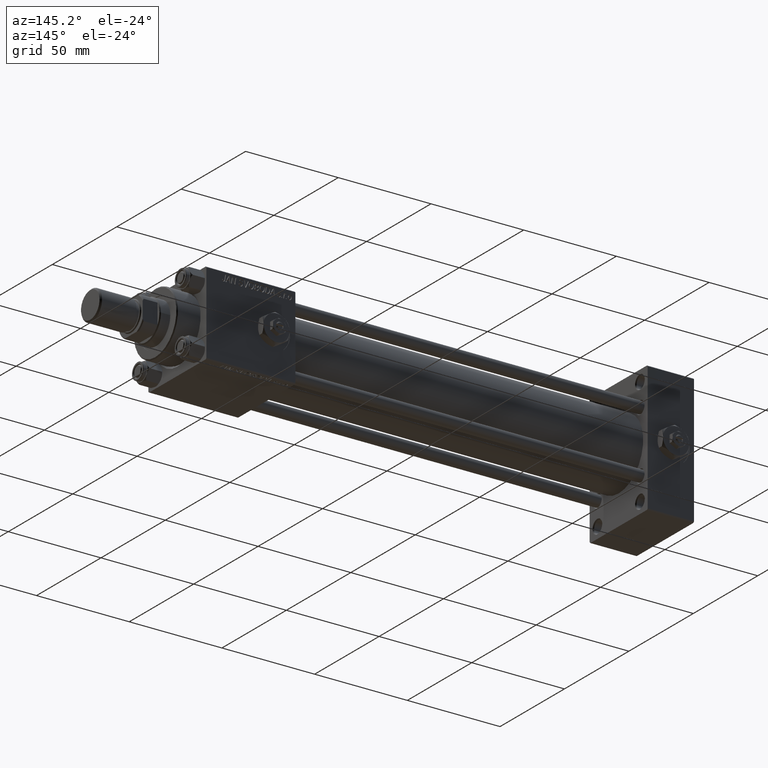
[diagram: clean part render]
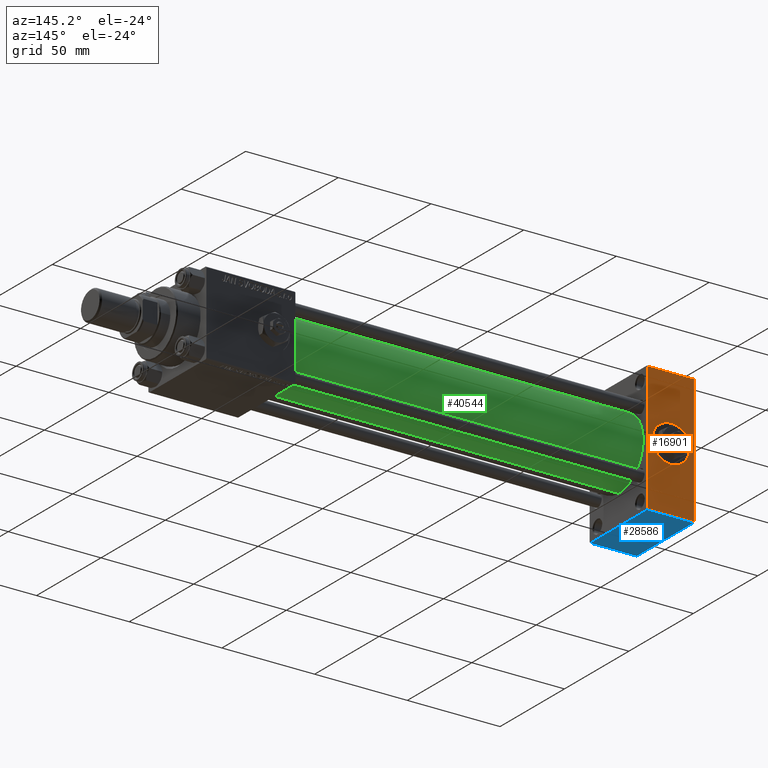
[diagram: same view with three faces highlighted in distinct colors, each labeled with its STEP entity id]
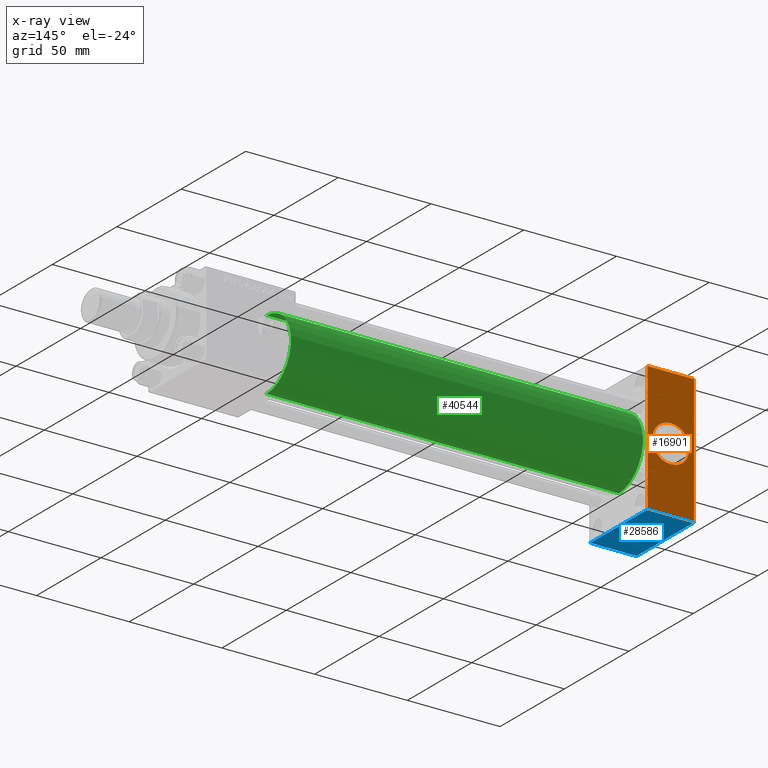
[diagram: x-ray of the same camera — body ghosted, the three highlighted faces saturated]
A machine part, auxiliary view with three faces highlighted in distinct colors.
The next image is the same camera in x-ray (body ghosted, the three faces saturated) — at least one of them is partly hidden behind the body in this view.
Their STEP definitions:

[orange] entity #16901 — the highlighted planar face has unit normal (0, 1, 0).
#378 = VERTEX_POINT ( 'NONE', #51078 ) ;
#2437 = EDGE_CURVE ( 'NONE', #378, #4293, #51621, .T. ) ;
#4267 = FACE_BOUND ( 'NONE', #9749, .T. ) ;
#4293 = VERTEX_POINT ( 'NONE', #41762 ) ;
#5075 = EDGE_LOOP ( 'NONE', ( #46463, #10758, #13793, #5126 ) ) ;
#5126 = ORIENTED_EDGE ( 'NONE', *, *, #47756, .T. ) ;
#8235 = DIRECTION ( 'NONE',  ( 0.000000000000000000, -0.000000000000000000, 1.000000000000000000 ) ) ;
#9749 = EDGE_LOOP ( 'NONE', ( #51679, #12500 ) ) ;
#10061 = VERTEX_POINT ( 'NONE', #22151 ) ;
#10758 = ORIENTED_EDGE ( 'NONE', *, *, #36799, .T. ) ;
#12500 = ORIENTED_EDGE ( 'NONE', *, *, #50570, .F. ) ;
#13793 = ORIENTED_EDGE ( 'NONE', *, *, #51353, .F. ) ;
#15006 = LINE ( 'NONE', #26447, #50454 ) ;
#15068 = VERTEX_POINT ( 'NONE', #19122 ) ;
#16605 = VERTEX_POINT ( 'NONE', #36677 ) ;
#16901 = ADVANCED_FACE ( 'NONE', ( #4267, #49081 ), #48293, .T. ) ;
#16911 = AXIS2_PLACEMENT_3D ( 'NONE', #36346, #36611, #8235 ) ;
#19122 = CARTESIAN_POINT ( 'NONE',  ( 0.000000000000000000, 22.50000000000000355, 34.49999999999999289 ) ) ;
#19288 = AXIS2_PLACEMENT_3D ( 'NONE', #37228, #40944, #28490 ) ;
#19456 = VECTOR ( 'NONE', #49786, 1000.000000000000000 ) ;
#19731 = EDGE_CURVE ( 'NONE', #42853, #10061, #33602, .T. ) ;
#22151 = CARTESIAN_POINT ( 'NONE',  ( 25.00000000000000000, 22.50000000000000355, -34.49999999999999289 ) ) ;
#22567 = DIRECTION ( 'NONE',  ( 0.000000000000000000, 0.000000000000000000, -1.000000000000000000 ) ) ;
#24711 = CARTESIAN_POINT ( 'NONE',  ( 25.00000000000000000, 22.50000000000000355, 34.49999999999999289 ) ) ;
#25124 = CARTESIAN_POINT ( 'NONE',  ( 25.00000000000000000, 22.50000000000000355, 35.00000000000000711 ) ) ;
#26447 = CARTESIAN_POINT ( 'NONE',  ( 25.00000000000000000, 22.50000000000000355, -34.49999999999999289 ) ) ;
#28490 = DIRECTION ( 'NONE',  ( 0.000000000000000000, 0.000000000000000000, 1.000000000000000000 ) ) ;
#31760 = DIRECTION ( 'NONE',  ( 0.000000000000000000, 1.000000000000000000, 0.000000000000000000 ) ) ;
#32007 = VECTOR ( 'NONE', #22567, 1000.000000000000000 ) ;
#32737 = VECTOR ( 'NONE', #35610, 1000.000000000000000 ) ;
#33602 = LINE ( 'NONE', #25124, #19456 ) ;
#33988 = CARTESIAN_POINT ( 'NONE',  ( 0.000000000000000000, 22.50000000000000355, 35.00000000000000711 ) ) ;
#35610 = DIRECTION ( 'NONE',  ( 1.000000000000000000, 0.000000000000000000, 0.000000000000000000 ) ) ;
#35731 = CARTESIAN_POINT ( 'NONE',  ( 12.50000000000000000, 22.50000000000000355, 0.000000000000000000 ) ) ;
#36346 = CARTESIAN_POINT ( 'NONE',  ( 25.00000000000000000, 22.50000000000000355, 35.00000000000000711 ) ) ;
#36611 = DIRECTION ( 'NONE',  ( -0.000000000000000000, 1.000000000000000000, 0.000000000000000000 ) ) ;
#36677 = CARTESIAN_POINT ( 'NONE',  ( 0.000000000000000000, 22.50000000000000355, -34.49999999999999289 ) ) ;
#36799 = EDGE_CURVE ( 'NONE', #10061, #16605, #15006, .T. ) ;
#37228 = CARTESIAN_POINT ( 'NONE',  ( 12.50000000000000000, 22.50000000000000355, 0.000000000000000000 ) ) ;
#40944 = DIRECTION ( 'NONE',  ( 0.000000000000000000, 1.000000000000000000, 0.000000000000000000 ) ) ;
#41762 = CARTESIAN_POINT ( 'NONE',  ( 12.50000000000000178, 22.50000000000000355, -9.999999999999996447 ) ) ;
#42610 = DIRECTION ( 'NONE',  ( -1.000000000000000000, 0.000000000000000000, 0.000000000000000000 ) ) ;
#42853 = VERTEX_POINT ( 'NONE', #47784 ) ;
#43946 = DIRECTION ( 'NONE',  ( 0.000000000000000000, 0.000000000000000000, 1.000000000000000000 ) ) ;
#44694 = CIRCLE ( 'NONE', #19288, 9.999999999999996447 ) ;
#44841 = AXIS2_PLACEMENT_3D ( 'NONE', #35731, #31760, #43946 ) ;
#44875 = LINE ( 'NONE', #24711, #32737 ) ;
#45403 = LINE ( 'NONE', #33988, #32007 ) ;
#46463 = ORIENTED_EDGE ( 'NONE', *, *, #19731, .T. ) ;
#47756 = EDGE_CURVE ( 'NONE', #15068, #42853, #44875, .T. ) ;
#47784 = CARTESIAN_POINT ( 'NONE',  ( 25.00000000000000000, 22.50000000000000355, 34.49999999999999289 ) ) ;
#48293 = PLANE ( 'NONE',  #16911 ) ;
#49081 = FACE_OUTER_BOUND ( 'NONE', #5075, .T. ) ;
#49786 = DIRECTION ( 'NONE',  ( 0.000000000000000000, 0.000000000000000000, -1.000000000000000000 ) ) ;
#50454 = VECTOR ( 'NONE', #42610, 1000.000000000000000 ) ;
#50570 = EDGE_CURVE ( 'NONE', #4293, #378, #44694, .T. ) ;
#51078 = CARTESIAN_POINT ( 'NONE',  ( 12.50000000000000000, 22.50000000000000355, 9.999999999999996447 ) ) ;
#51353 = EDGE_CURVE ( 'NONE', #15068, #16605, #45403, .T. ) ;
#51621 = CIRCLE ( 'NONE', #44841, 9.999999999999996447 ) ;
#51679 = ORIENTED_EDGE ( 'NONE', *, *, #2437, .F. ) ;

[blue] entity #28586 — the highlighted planar face has unit normal (0, 0, -1).
#2828 = AXIS2_PLACEMENT_3D ( 'NONE', #48480, #3150, #47443 ) ;
#2902 = VECTOR ( 'NONE', #48978, 1000.000000000000000 ) ;
#3150 = DIRECTION ( 'NONE',  ( 0.000000000000000000, 1.541976423090495387E-16, -1.000000000000000000 ) ) ;
#7421 = VECTOR ( 'NONE', #11662, 1000.000000000000000 ) ;
#8204 = VERTEX_POINT ( 'NONE', #39591 ) ;
#11150 = LINE ( 'NONE', #39009, #7421 ) ;
#11662 = DIRECTION ( 'NONE',  ( -1.000000000000000000, 0.000000000000000000, 0.000000000000000000 ) ) ;
#11789 = LINE ( 'NONE', #20286, #50195 ) ;
#12279 = ORIENTED_EDGE ( 'NONE', *, *, #39484, .T. ) ;
#13573 = VERTEX_POINT ( 'NONE', #32780 ) ;
#14065 = EDGE_LOOP ( 'NONE', ( #35723, #29426, #44273, #12279 ) ) ;
#20286 = CARTESIAN_POINT ( 'NONE',  ( 25.00000000000000000, 22.50000000000000355, -34.99999999999999289 ) ) ;
#22484 = LINE ( 'NONE', #30193, #46897 ) ;
#23305 = FACE_OUTER_BOUND ( 'NONE', #14065, .T. ) ;
#23744 = DIRECTION ( 'NONE',  ( 0.000000000000000000, -1.000000000000000000, -1.541976423090495387E-16 ) ) ;
#26913 = EDGE_CURVE ( 'NONE', #13573, #35706, #11789, .T. ) ;
#28586 = ADVANCED_FACE ( 'NONE', ( #23305 ), #48218, .T. ) ;
#29096 = LINE ( 'NONE', #36777, #2902 ) ;
#29426 = ORIENTED_EDGE ( 'NONE', *, *, #33998, .T. ) ;
#29643 = CARTESIAN_POINT ( 'NONE',  ( 25.00000000000000000, -21.99999999999998934, -35.00000000000000000 ) ) ;
#30193 = CARTESIAN_POINT ( 'NONE',  ( 0.000000000000000000, 22.50000000000000355, -34.99999999999999289 ) ) ;
#32780 = CARTESIAN_POINT ( 'NONE',  ( 25.00000000000000000, 21.99999999999999645, -34.99999999999999289 ) ) ;
#33146 = EDGE_CURVE ( 'NONE', #8204, #34404, #22484, .T. ) ;
#33998 = EDGE_CURVE ( 'NONE', #8204, #13573, #29096, .T. ) ;
#34404 = VERTEX_POINT ( 'NONE', #37441 ) ;
#35706 = VERTEX_POINT ( 'NONE', #29643 ) ;
#35723 = ORIENTED_EDGE ( 'NONE', *, *, #33146, .F. ) ;
#36777 = CARTESIAN_POINT ( 'NONE',  ( 25.00000000000000000, 21.99999999999999645, -34.99999999999999289 ) ) ;
#37441 = CARTESIAN_POINT ( 'NONE',  ( 0.000000000000000000, -21.99999999999998934, -35.00000000000000000 ) ) ;
#39009 = CARTESIAN_POINT ( 'NONE',  ( 0.000000000000000000, -22.00000000000000355, -35.00000000000000000 ) ) ;
#39484 = EDGE_CURVE ( 'NONE', #35706, #34404, #11150, .T. ) ;
#39591 = CARTESIAN_POINT ( 'NONE',  ( 0.000000000000000000, 21.99999999999999645, -34.99999999999999289 ) ) ;
#44273 = ORIENTED_EDGE ( 'NONE', *, *, #26913, .T. ) ;
#46357 = DIRECTION ( 'NONE',  ( 0.000000000000000000, -1.000000000000000000, -1.541976423090495387E-16 ) ) ;
#46897 = VECTOR ( 'NONE', #46357, 1000.000000000000000 ) ;
#47443 = DIRECTION ( 'NONE',  ( 0.000000000000000000, 1.000000000000000000, 1.541976423090495387E-16 ) ) ;
#48218 = PLANE ( 'NONE',  #2828 ) ;
#48480 = CARTESIAN_POINT ( 'NONE',  ( 25.00000000000000000, 22.50000000000000355, -34.99999999999999289 ) ) ;
#48978 = DIRECTION ( 'NONE',  ( 1.000000000000000000, 0.000000000000000000, 0.000000000000000000 ) ) ;
#50195 = VECTOR ( 'NONE', #23744, 1000.000000000000000 ) ;

[green] entity #40544 — the highlighted cylindrical surface (partial cylindrical patch) has radius 19 mm, axis along (-1, -0, -0).
#4161 = CARTESIAN_POINT ( 'NONE',  ( 215.0000000000000000, -2.752562955852396712E-16, -19.00000000000000000 ) ) ;
#4490 = CARTESIAN_POINT ( 'NONE',  ( 24.99999999999999289, -2.602085213965210642E-15, 19.00000000000000000 ) ) ;
#5936 = CARTESIAN_POINT ( 'NONE',  ( 215.0000000000000000, -2.752562955852396712E-16, -19.00000000000000000 ) ) ;
#7952 = CARTESIAN_POINT ( 'NONE',  ( 215.0000000000000000, -2.602085213965210642E-15, 19.00000000000000000 ) ) ;
#9691 = ORIENTED_EDGE ( 'NONE', *, *, #51488, .F. ) ;
#14153 = DIRECTION ( 'NONE',  ( 0.000000000000000000, 0.000000000000000000, 1.000000000000000000 ) ) ;
#14520 = ORIENTED_EDGE ( 'NONE', *, *, #23989, .F. ) ;
#14652 = DIRECTION ( 'NONE',  ( -1.000000000000000000, -0.000000000000000000, -0.000000000000000000 ) ) ;
#18790 = DIRECTION ( 'NONE',  ( 0.000000000000000000, 0.000000000000000000, -1.000000000000000000 ) ) ;
#23401 = DIRECTION ( 'NONE',  ( 0.000000000000000000, 0.000000000000000000, 1.000000000000000000 ) ) ;
#23989 = EDGE_CURVE ( 'NONE', #30766, #48782, #45881, .T. ) ;
#26945 = VECTOR ( 'NONE', #35034, 1000.000000000000000 ) ;
#27167 = EDGE_CURVE ( 'NONE', #43984, #37728, #31607, .T. ) ;
#28551 = ORIENTED_EDGE ( 'NONE', *, *, #27167, .T. ) ;
#29496 = DIRECTION ( 'NONE',  ( 1.000000000000000000, 0.000000000000000000, 0.000000000000000000 ) ) ;
#30766 = VERTEX_POINT ( 'NONE', #5936 ) ;
#30844 = CYLINDRICAL_SURFACE ( 'NONE', #44317, 19.00000000000000000 ) ;
#31607 = CIRCLE ( 'NONE', #39205, 19.00000000000000000 ) ;
#33378 = CARTESIAN_POINT ( 'NONE',  ( 24.99999999999999289, -2.752562955852396712E-16, -19.00000000000000000 ) ) ;
#35034 = DIRECTION ( 'NONE',  ( -1.000000000000000000, -0.000000000000000000, -0.000000000000000000 ) ) ;
#35811 = LINE ( 'NONE', #7952, #26945 ) ;
#37728 = VERTEX_POINT ( 'NONE', #4490 ) ;
#38788 = CARTESIAN_POINT ( 'NONE',  ( 215.0000000000000000, -2.602085213965210642E-15, 0.000000000000000000 ) ) ;
#39205 = AXIS2_PLACEMENT_3D ( 'NONE', #46781, #50503, #14153 ) ;
#40330 = VECTOR ( 'NONE', #49238, 1000.000000000000000 ) ;
#40475 = LINE ( 'NONE', #4161, #40330 ) ;
#40544 = ADVANCED_FACE ( 'NONE', ( #51532 ), #30844, .T. ) ;
#43984 = VERTEX_POINT ( 'NONE', #33378 ) ;
#44317 = AXIS2_PLACEMENT_3D ( 'NONE', #38788, #14652, #23401 ) ;
#45013 = AXIS2_PLACEMENT_3D ( 'NONE', #51158, #29496, #18790 ) ;
#45246 = ORIENTED_EDGE ( 'NONE', *, *, #46932, .T. ) ;
#45881 = CIRCLE ( 'NONE', #45013, 19.00000000000000000 ) ;
#46487 = EDGE_LOOP ( 'NONE', ( #14520, #45246, #28551, #9691 ) ) ;
#46781 = CARTESIAN_POINT ( 'NONE',  ( 24.99999999999999289, -2.602085213965210642E-15, 0.000000000000000000 ) ) ;
#46932 = EDGE_CURVE ( 'NONE', #30766, #43984, #40475, .T. ) ;
#47255 = CARTESIAN_POINT ( 'NONE',  ( 215.0000000000000000, -2.602085213965210642E-15, 19.00000000000000000 ) ) ;
#48782 = VERTEX_POINT ( 'NONE', #47255 ) ;
#49238 = DIRECTION ( 'NONE',  ( -1.000000000000000000, -0.000000000000000000, -0.000000000000000000 ) ) ;
#50503 = DIRECTION ( 'NONE',  ( 1.000000000000000000, -0.000000000000000000, 0.000000000000000000 ) ) ;
#51158 = CARTESIAN_POINT ( 'NONE',  ( 215.0000000000000000, -2.602085213965210642E-15, 0.000000000000000000 ) ) ;
#51488 = EDGE_CURVE ( 'NONE', #48782, #37728, #35811, .T. ) ;
#51532 = FACE_OUTER_BOUND ( 'NONE', #46487, .T. ) ;